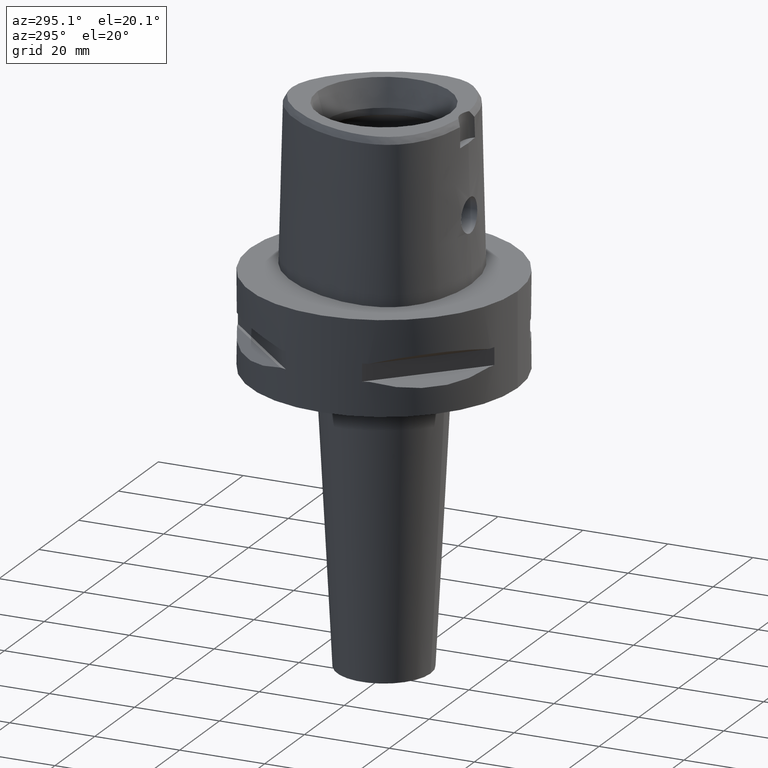
[diagram: clean part render]
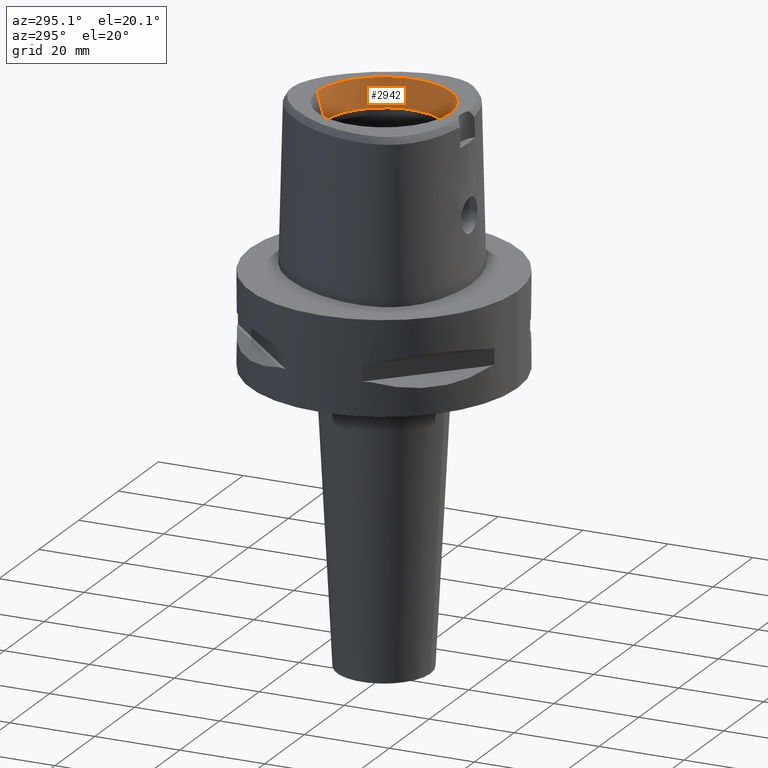
[diagram: same view with one face highlighted and labeled with its STEP entity id]
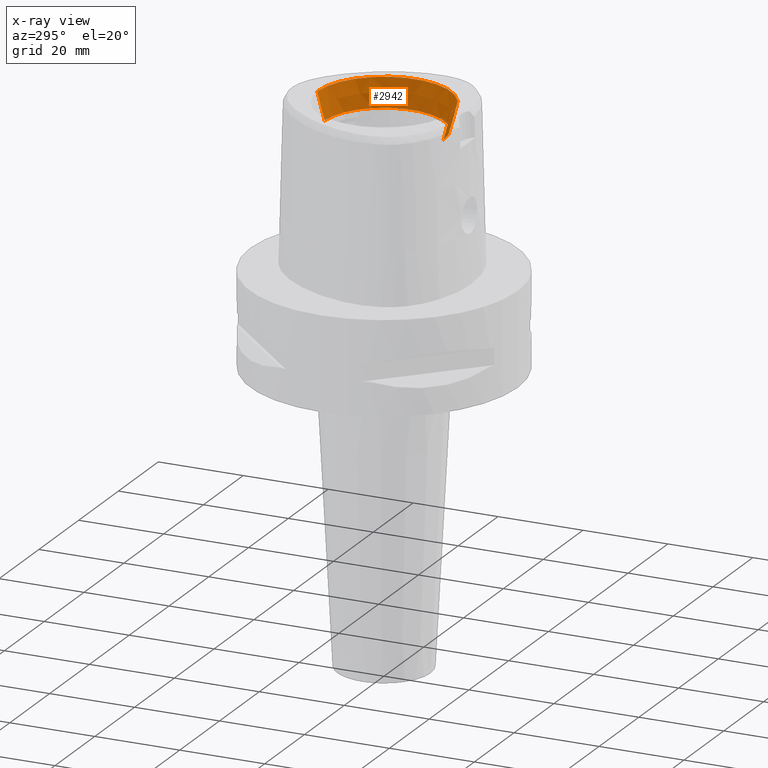
[diagram: x-ray of the same camera — body ghosted, the highlighted face saturated]
A machine part, auxiliary view. The second image highlights one B-rep face of the part: STEP entity #2942.
The next image is the same camera in x-ray: the body ghosted, the highlighted face saturated — about 1% of this face is hidden behind the body in this view.
In plain terms, the highlighted conical surface has half-angle 15 deg.
Its self-contained STEP definition (entity closure, byte-faithful):
#128=CARTESIAN_POINT('',(0.E0,0.E0,3.8E1));
#129=DIRECTION('',(0.E0,0.E0,1.E0));
#130=DIRECTION('',(0.E0,-1.E0,0.E0));
#131=AXIS2_PLACEMENT_3D('',#128,#129,#130);
#1092=DIRECTION('',(0.E0,-2.588190451026E-1,9.659258262891E-1));
#1093=VECTOR('',#1092,6.625767554625E0);
#1094=CARTESIAN_POINT('',(0.E0,-1.4E1,3.16E1));
#1095=LINE('',#1094,#1093);
#1099=CARTESIAN_POINT('',(0.E0,0.E0,3.16E1));
#1100=DIRECTION('',(0.E0,0.E0,1.E0));
#1101=DIRECTION('',(0.E0,-1.E0,0.E0));
#1102=AXIS2_PLACEMENT_3D('',#1099,#1100,#1101);
#1107=DIRECTION('',(0.E0,2.588190451026E-1,9.659258262891E-1));
#1108=VECTOR('',#1107,6.625767554625E0);
#1109=CARTESIAN_POINT('',(0.E0,1.4E1,3.16E1));
#1110=LINE('',#1109,#1108);
#1421=CARTESIAN_POINT('',(0.E0,1.571487483156E1,3.8E1));
#1422=CARTESIAN_POINT('',(0.E0,-1.571487483156E1,3.8E1));
#1423=VERTEX_POINT('',#1421);
#1424=VERTEX_POINT('',#1422);
#1565=CARTESIAN_POINT('',(0.E0,-1.4E1,3.16E1));
#1566=VERTEX_POINT('',#1565);
#1567=CARTESIAN_POINT('',(0.E0,1.4E1,3.16E1));
#1568=VERTEX_POINT('',#1567);
#2931=CARTESIAN_POINT('',(0.E0,0.E0,3.48E1));
#2932=DIRECTION('',(0.E0,0.E0,1.E0));
#2933=DIRECTION('',(0.E0,1.E0,0.E0));
#2934=AXIS2_PLACEMENT_3D('',#2931,#2932,#2933);
#2935=CONICAL_SURFACE('',#2934,1.485743741578E1,1.5E1);
#2936=ORIENTED_EDGE('',*,*,#1586,.F.);
#2937=ORIENTED_EDGE('',*,*,#2926,.F.);
#2938=ORIENTED_EDGE('',*,*,#2899,.T.);
#2939=ORIENTED_EDGE('',*,*,#2923,.T.);
#2940=EDGE_LOOP('',(#2936,#2937,#2938,#2939));
#2941=FACE_OUTER_BOUND('',#2940,.F.);
#132=CIRCLE('',#131,1.571487483156E1);
#1103=CIRCLE('',#1102,1.4E1);
#1586=EDGE_CURVE('',#1424,#1423,#132,.T.);
#2899=EDGE_CURVE('',#1566,#1568,#1103,.T.);
#2923=EDGE_CURVE('',#1568,#1423,#1110,.T.);
#2926=EDGE_CURVE('',#1566,#1424,#1095,.T.);
#2942=ADVANCED_FACE('',(#2941),#2935,.F.);